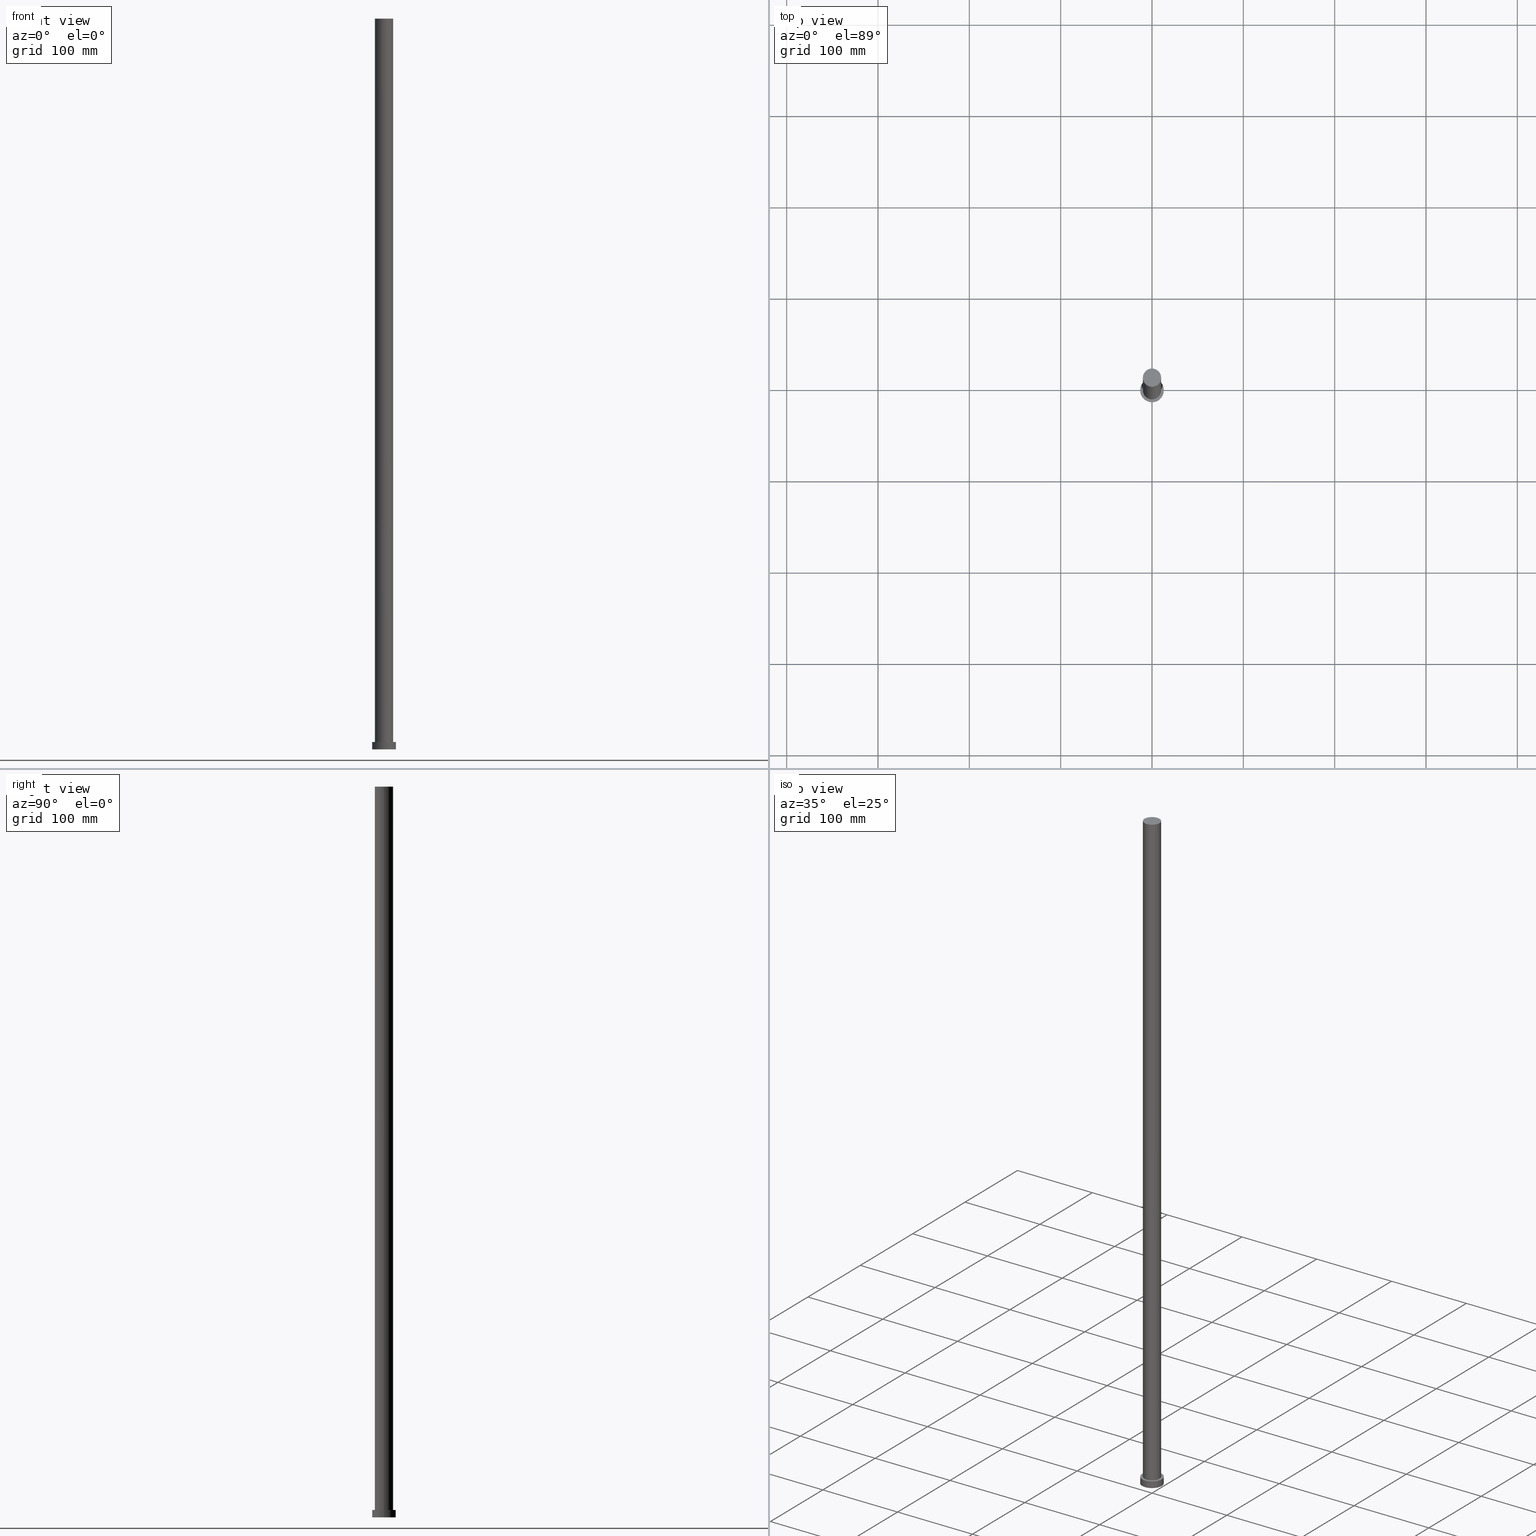
[diagram: canonical four-view strip — front | top / right | iso, engineering-drawing reading convention]
A machine part, canonical four-view strip (front | top / right | iso — engineering-drawing reading convention). The complete STEP part file that produces these views, byte-faithful:
ISO-10303-21;
HEADER;
FILE_DESCRIPTION (( 'STEP AP203' ),
    '1' );
FILE_NAME ('0bb4.STEP',
    '2023-02-12T10:31:36',
    ( '' ),
    ( '' ),
    'SwSTEP 2.0',
    'SolidWorks 2019',
    '' );
FILE_SCHEMA (( 'CONFIG_CONTROL_DESIGN' ));
ENDSEC;

DATA;
#1 = CARTESIAN_POINT ( 'NONE',  ( 10.00000000000000000, 1.224646799147353256E-15, 800.0000000000000000 ) ) ;
#2 = CARTESIAN_POINT ( 'NONE',  ( 0.000000000000000000, 0.000000000000000000, 800.0000000000000000 ) ) ;
#3 = LOCAL_TIME ( 11, 31, 36.00000000000000000, #138 ) ;
#4 = DIRECTION ( 'NONE',  ( 0.000000000000000000, 0.000000000000000000, 1.000000000000000000 ) ) ;
#5 = CYLINDRICAL_SURFACE ( 'NONE', #59, 10.00000000000000000 ) ;
#6 = AXIS2_PLACEMENT_3D ( 'NONE', #102, #88, #244 ) ;
#7 = CARTESIAN_POINT ( 'NONE',  ( 0.000000000000000000, 0.000000000000000000, 800.0000000000000000 ) ) ;
#8 = DIRECTION ( 'NONE',  ( 1.000000000000000000, 0.000000000000000000, 0.000000000000000000 ) ) ;
#9 = CARTESIAN_POINT ( 'NONE',  ( -10.00000000000000000, 0.000000000000000000, 800.0000000000000000 ) ) ;
#10 = EDGE_LOOP ( 'NONE', ( #224, #127, #52, #16 ) ) ;
#11 = ADVANCED_FACE ( 'NONE', ( #36 ), #179, .T. ) ;
#12 = ORIENTED_EDGE ( 'NONE', *, *, #171, .F. ) ;
#13 = CIRCLE ( 'NONE', #126, 13.00000000000000178 ) ;
#14 = DIRECTION ( 'NONE',  ( -0.000000000000000000, -0.000000000000000000, -1.000000000000000000 ) ) ;
#15 = EDGE_LOOP ( 'NONE', ( #12, #201 ) ) ;
#16 = ORIENTED_EDGE ( 'NONE', *, *, #130, .T. ) ;
#17 = APPROVAL_STATUS ( 'not_yet_approved' ) ;
#18 = DATE_TIME_ROLE ( 'classification_date' ) ;
#19 = PERSON_AND_ORGANIZATION_ROLE ( 'creator' ) ;
#20 = AXIS2_PLACEMENT_3D ( 'NONE', #235, #4, #241 ) ;
#21 = APPROVAL_PERSON_ORGANIZATION ( #186, #159, #190 ) ;
#22 = LINE ( 'NONE', #23, #228 ) ;
#23 = CARTESIAN_POINT ( 'NONE',  ( 10.00000000000000000, 1.224646799147353256E-15, 800.0000000000000000 ) ) ;
#24 = DIRECTION ( 'NONE',  ( 1.000000000000000000, 0.000000000000000000, 0.000000000000000000 ) ) ;
#25 = ADVANCED_FACE ( 'NONE', ( #189 ), #139, .T. ) ;
#26 = AXIS2_PLACEMENT_3D ( 'NONE', #225, #233, #94 ) ;
#27 = DIRECTION ( 'NONE',  ( 0.000000000000000000, 0.000000000000000000, 1.000000000000000000 ) ) ;
#28 = FACE_OUTER_BOUND ( 'NONE', #10, .T. ) ;
#29 = ORIENTED_EDGE ( 'NONE', *, *, #47, .T. ) ;
#30 = ADVANCED_BREP_SHAPE_REPRESENTATION ( '0bb4', ( #154, #152 ), #222 ) ;
#31 = DIRECTION ( 'NONE',  ( 0.000000000000000000, 0.000000000000000000, 1.000000000000000000 ) ) ;
#32 = EDGE_CURVE ( 'NONE', #247, #136, #246, .T. ) ;
#33 = ORIENTED_EDGE ( 'NONE', *, *, #130, .F. ) ;
#34 = DATE_TIME_ROLE ( 'creation_date' ) ;
#35 =( LENGTH_UNIT ( ) NAMED_UNIT ( * ) SI_UNIT ( .MILLI., .METRE. ) );
#36 = FACE_OUTER_BOUND ( 'NONE', #229, .T. ) ;
#37 = PERSON_AND_ORGANIZATION_ROLE ( 'design_supplier' ) ;
#38 = CARTESIAN_POINT ( 'NONE',  ( -13.00000000000000178, 0.000000000000000000, 8.000000000000000000 ) ) ;
#39 = CALENDAR_DATE ( 2023, 12, 2 ) ;
#40 = PERSON_AND_ORGANIZATION_ROLE ( 'creator' ) ;
#41 = ADVANCED_FACE ( 'NONE', ( #86, #209 ), #43, .T. ) ;
#42 = CIRCLE ( 'NONE', #237, 10.00000000000000000 ) ;
#43 = PLANE ( 'NONE',  #193 ) ;
#44 = LOCAL_TIME ( 11, 31, 36.00000000000000000, #156 ) ;
#45 = CARTESIAN_POINT ( 'NONE',  ( 13.00000000000000178, 1.592040838891559293E-15, 0.000000000000000000 ) ) ;
#46 = DIRECTION ( 'NONE',  ( -1.000000000000000000, 0.000000000000000000, 0.000000000000000000 ) ) ;
#47 = EDGE_CURVE ( 'NONE', #55, #57, #22, .T. ) ;
#48 = CIRCLE ( 'NONE', #178, 13.00000000000000178 ) ;
#49 = ORIENTED_EDGE ( 'NONE', *, *, #32, .F. ) ;
#50 = APPROVAL_PERSON_ORGANIZATION ( #96, #191, #78 ) ;
#51 = CARTESIAN_POINT ( 'NONE',  ( -10.00000000000000000, 0.000000000000000000, 800.0000000000000000 ) ) ;
#52 = ORIENTED_EDGE ( 'NONE', *, *, #140, .T. ) ;
#53 = ORIENTED_EDGE ( 'NONE', *, *, #239, .F. ) ;
#54 = DATE_AND_TIME ( #39, #160 ) ;
#55 = VERTEX_POINT ( 'NONE', #1 ) ;
#56 = PERSON_AND_ORGANIZATION_ROLE ( 'design_owner' ) ;
#57 = VERTEX_POINT ( 'NONE', #174 ) ;
#58 = PERSON_AND_ORGANIZATION ( #197, #198 ) ;
#59 = AXIS2_PLACEMENT_3D ( 'NONE', #7, #144, #217 ) ;
#60 = PERSON_AND_ORGANIZATION ( #197, #198 ) ;
#61 = AXIS2_PLACEMENT_3D ( 'NONE', #75, #184, #251 ) ;
#62 = APPROVAL_PERSON_ORGANIZATION ( #114, #180, #236 ) ;
#63 = DIRECTION ( 'NONE',  ( -1.000000000000000000, 0.000000000000000000, 0.000000000000000000 ) ) ;
#64 = EDGE_CURVE ( 'NONE', #92, #55, #42, .T. ) ;
#65 = DIRECTION ( 'NONE',  ( 1.000000000000000000, 0.000000000000000000, 0.000000000000000000 ) ) ;
#66 = SECURITY_CLASSIFICATION ( '', '', #100 ) ;
#67 = DIRECTION ( 'NONE',  ( 0.000000000000000000, 0.000000000000000000, 1.000000000000000000 ) ) ;
#68 = VERTEX_POINT ( 'NONE', #45 ) ;
#69 = CLOSED_SHELL ( 'NONE', ( #11, #25, #173, #41, #202, #108, #243 ) ) ;
#70 = CARTESIAN_POINT ( 'NONE',  ( 0.000000000000000000, 0.000000000000000000, 8.000000000000000000 ) ) ;
#71 = PLANE ( 'NONE',  #61 ) ;
#72 = ORIENTED_EDGE ( 'NONE', *, *, #64, .T. ) ;
#73 = CYLINDRICAL_SURFACE ( 'NONE', #89, 13.00000000000000178 ) ;
#74 = ORIENTED_EDGE ( 'NONE', *, *, #87, .F. ) ;
#75 = CARTESIAN_POINT ( 'NONE',  ( 0.000000000000000000, 0.000000000000000000, 800.0000000000000000 ) ) ;
#76 = ORIENTED_EDGE ( 'NONE', *, *, #82, .T. ) ;
#77 = DIRECTION ( 'NONE',  ( -0.000000000000000000, -0.000000000000000000, -1.000000000000000000 ) ) ;
#78 = APPROVAL_ROLE ( '' ) ;
#79 = EDGE_CURVE ( 'NONE', #136, #247, #48, .T. ) ;
#80 = DESIGN_CONTEXT ( 'detailed design', #116, 'design' ) ;
#81 = DATE_AND_TIME ( #211, #3 ) ;
#82 = EDGE_CURVE ( 'NONE', #57, #185, #187, .T. ) ;
#83 = AXIS2_PLACEMENT_3D ( 'NONE', #105, #93, #24 ) ;
#84 = CIRCLE ( 'NONE', #175, 13.00000000000000178 ) ;
#85 = SHAPE_DEFINITION_REPRESENTATION ( #216, #30 ) ;
#86 = FACE_BOUND ( 'NONE', #167, .T. ) ;
#87 = EDGE_CURVE ( 'NONE', #55, #92, #218, .T. ) ;
#88 = DIRECTION ( 'NONE',  ( 0.000000000000000000, 0.000000000000000000, 1.000000000000000000 ) ) ;
#89 = AXIS2_PLACEMENT_3D ( 'NONE', #128, #151, #46 ) ;
#90 = ORIENTED_EDGE ( 'NONE', *, *, #82, .F. ) ;
#91 = DIRECTION ( 'NONE',  ( 0.000000000000000000, 0.000000000000000000, 1.000000000000000000 ) ) ;
#92 = VERTEX_POINT ( 'NONE', #51 ) ;
#93 = DIRECTION ( 'NONE',  ( 0.000000000000000000, 0.000000000000000000, 1.000000000000000000 ) ) ;
#94 = DIRECTION ( 'NONE',  ( 1.000000000000000000, 0.000000000000000000, -0.000000000000000000 ) ) ;
#95 = ORIENTED_EDGE ( 'NONE', *, *, #242, .T. ) ;
#96 = PERSON_AND_ORGANIZATION ( #197, #198 ) ;
#97 = CALENDAR_DATE ( 2023, 12, 2 ) ;
#98 = APPROVAL_STATUS ( 'not_yet_approved' ) ;
#99 = CC_DESIGN_SECURITY_CLASSIFICATION ( #66, ( #122 ) ) ;
#100 = SECURITY_CLASSIFICATION_LEVEL ( 'unclassified' ) ;
#101 = DIRECTION ( 'NONE',  ( -0.000000000000000000, -0.000000000000000000, -1.000000000000000000 ) ) ;
#102 = CARTESIAN_POINT ( 'NONE',  ( 0.000000000000000000, 0.000000000000000000, 8.000000000000000000 ) ) ;
#103 = PRODUCT_RELATED_PRODUCT_CATEGORY ( 'detail', '', ( #213 ) ) ;
#104 = APPLICATION_PROTOCOL_DEFINITION ( 'international standard', 'config_control_design', 1994, #118 ) ;
#105 = CARTESIAN_POINT ( 'NONE',  ( 0.000000000000000000, 0.000000000000000000, 8.000000000000000000 ) ) ;
#106 = MECHANICAL_CONTEXT ( 'NONE', #118, 'mechanical' ) ;
#107 =( NAMED_UNIT ( * ) SI_UNIT ( $, .STERADIAN. ) SOLID_ANGLE_UNIT ( ) );
#108 = ADVANCED_FACE ( 'NONE', ( #28 ), #5, .T. ) ;
#109 = DIRECTION ( 'NONE',  ( 1.000000000000000000, 0.000000000000000000, 0.000000000000000000 ) ) ;
#110 = CARTESIAN_POINT ( 'NONE',  ( 13.00000000000000178, 1.592040838891559293E-15, 8.000000000000000000 ) ) ;
#111 = ORIENTED_EDGE ( 'NONE', *, *, #32, .T. ) ;
#112 = DIRECTION ( 'NONE',  ( 0.000000000000000000, 0.000000000000000000, 1.000000000000000000 ) ) ;
#113 = PERSON_AND_ORGANIZATION_ROLE ( 'classification_officer' ) ;
#114 = PERSON_AND_ORGANIZATION ( #197, #198 ) ;
#115 = LOCAL_TIME ( 11, 31, 36.00000000000000000, #212 ) ;
#116 = APPLICATION_CONTEXT ( 'configuration controlled 3d designs of mechanical parts and assemblies' ) ;
#117 = DATE_AND_TIME ( #134, #115 ) ;
#118 = APPLICATION_CONTEXT ( 'configuration controlled 3d designs of mechanical parts and assemblies' ) ;
#119 = UNCERTAINTY_MEASURE_WITH_UNIT (LENGTH_MEASURE( 1.000000000000000082E-05 ), #35, 'distance_accuracy_value', 'NONE');
#120 = CARTESIAN_POINT ( 'NONE',  ( 0.000000000000000000, 0.000000000000000000, 8.000000000000000000 ) ) ;
#121 = DIRECTION ( 'NONE',  ( -1.000000000000000000, 0.000000000000000000, 0.000000000000000000 ) ) ;
#122 = PRODUCT_DEFINITION_FORMATION_WITH_SPECIFIED_SOURCE ( 'LIBOVOLN�', '', #213, .NOT_KNOWN. ) ;
#123 = FACE_OUTER_BOUND ( 'NONE', #204, .T. ) ;
#124 = DIRECTION ( 'NONE',  ( 1.000000000000000000, 0.000000000000000000, 0.000000000000000000 ) ) ;
#125 = DIRECTION ( 'NONE',  ( -0.000000000000000000, -0.000000000000000000, -1.000000000000000000 ) ) ;
#126 = AXIS2_PLACEMENT_3D ( 'NONE', #203, #31, #109 ) ;
#127 = ORIENTED_EDGE ( 'NONE', *, *, #64, .F. ) ;
#128 = CARTESIAN_POINT ( 'NONE',  ( 0.000000000000000000, 0.000000000000000000, 8.000000000000000000 ) ) ;
#129 = EDGE_LOOP ( 'NONE', ( #72, #249 ) ) ;
#130 = EDGE_CURVE ( 'NONE', #185, #57, #210, .T. ) ;
#131 = VERTEX_POINT ( 'NONE', #182 ) ;
#132 = APPROVAL_DATE_TIME ( #54, #180 ) ;
#133 = AXIS2_PLACEMENT_3D ( 'NONE', #155, #240, #63 ) ;
#134 = CALENDAR_DATE ( 2023, 12, 2 ) ;
#135 = LINE ( 'NONE', #205, #255 ) ;
#136 = VERTEX_POINT ( 'NONE', #181 ) ;
#137 = DATE_AND_TIME ( #97, #188 ) ;
#138 = COORDINATED_UNIVERSAL_TIME_OFFSET ( 1, 0, .AHEAD. ) ;
#139 = CYLINDRICAL_SURFACE ( 'NONE', #133, 13.00000000000000178 ) ;
#140 = EDGE_CURVE ( 'NONE', #92, #185, #143, .T. ) ;
#141 = DIRECTION ( 'NONE',  ( 0.000000000000000000, 0.000000000000000000, 1.000000000000000000 ) ) ;
#142 = CC_DESIGN_PERSON_AND_ORGANIZATION_ASSIGNMENT ( #232, #40, ( #234 ) ) ;
#143 = LINE ( 'NONE', #9, #214 ) ;
#144 = DIRECTION ( 'NONE',  ( -0.000000000000000000, -0.000000000000000000, -1.000000000000000000 ) ) ;
#145 = AXIS2_PLACEMENT_3D ( 'NONE', #147, #67, #65 ) ;
#146 = CARTESIAN_POINT ( 'NONE',  ( 0.000000000000000000, 0.000000000000000000, 800.0000000000000000 ) ) ;
#147 = CARTESIAN_POINT ( 'NONE',  ( 0.000000000000000000, 0.000000000000000000, 800.0000000000000000 ) ) ;
#148 = CC_DESIGN_APPROVAL ( #180, ( #66 ) ) ;
#149 = CC_DESIGN_DATE_AND_TIME_ASSIGNMENT ( #117, #34, ( #234 ) ) ;
#150 = ORIENTED_EDGE ( 'NONE', *, *, #242, .F. ) ;
#151 = DIRECTION ( 'NONE',  ( -0.000000000000000000, -0.000000000000000000, -1.000000000000000000 ) ) ;
#152 = AXIS2_PLACEMENT_3D ( 'NONE', #220, #27, #8 ) ;
#153 = PERSON_AND_ORGANIZATION ( #197, #198 ) ;
#154 = MANIFOLD_SOLID_BREP ( 'P�idat vysunut�m3', #69 ) ;
#155 = CARTESIAN_POINT ( 'NONE',  ( 0.000000000000000000, 0.000000000000000000, 8.000000000000000000 ) ) ;
#156 = COORDINATED_UNIVERSAL_TIME_OFFSET ( 1, 0, .AHEAD. ) ;
#157 = CC_DESIGN_PERSON_AND_ORGANIZATION_ASSIGNMENT ( #153, #19, ( #122 ) ) ;
#158 = AXIS2_PLACEMENT_3D ( 'NONE', #146, #77, #121 ) ;
#159 = APPROVAL ( #17, 'NEUR�EN�' ) ;
#160 = LOCAL_TIME ( 11, 31, 36.00000000000000000, #226 ) ;
#161 = DIRECTION ( 'NONE',  ( 0.000000000000000000, 0.000000000000000000, 1.000000000000000000 ) ) ;
#162 = EDGE_LOOP ( 'NONE', ( #111, #206 ) ) ;
#163 = FACE_OUTER_BOUND ( 'NONE', #129, .T. ) ;
#164 = ORIENTED_EDGE ( 'NONE', *, *, #79, .F. ) ;
#165 = DIRECTION ( 'NONE',  ( 1.000000000000000000, 0.000000000000000000, 0.000000000000000000 ) ) ;
#166 = DIRECTION ( 'NONE',  ( -0.000000000000000000, -0.000000000000000000, -1.000000000000000000 ) ) ;
#167 = EDGE_LOOP ( 'NONE', ( #33, #90 ) ) ;
#168 = APPROVAL_STATUS ( 'not_yet_approved' ) ;
#169 = EDGE_LOOP ( 'NONE', ( #164, #95, #245, #53 ) ) ;
#170 = COORDINATED_UNIVERSAL_TIME_OFFSET ( 1, 0, .AHEAD. ) ;
#171 = EDGE_CURVE ( 'NONE', #131, #68, #84, .T. ) ;
#172 = CC_DESIGN_APPROVAL ( #159, ( #122 ) ) ;
#173 = ADVANCED_FACE ( 'NONE', ( #123 ), #73, .T. ) ;
#174 = CARTESIAN_POINT ( 'NONE',  ( 10.00000000000000000, 1.224646799147353256E-15, 8.000000000000000000 ) ) ;
#175 = AXIS2_PLACEMENT_3D ( 'NONE', #200, #91, #165 ) ;
#176 = CARTESIAN_POINT ( 'NONE',  ( -10.00000000000000000, 0.000000000000000000, 8.000000000000000000 ) ) ;
#177 = CC_DESIGN_PERSON_AND_ORGANIZATION_ASSIGNMENT ( #60, #113, ( #66 ) ) ;
#178 = AXIS2_PLACEMENT_3D ( 'NONE', #70, #161, #124 ) ;
#179 = CYLINDRICAL_SURFACE ( 'NONE', #158, 10.00000000000000000 ) ;
#180 = APPROVAL ( #98, 'NEUR�EN�' ) ;
#181 = CARTESIAN_POINT ( 'NONE',  ( 13.00000000000000178, 1.592040838891559293E-15, 8.000000000000000000 ) ) ;
#182 = CARTESIAN_POINT ( 'NONE',  ( -13.00000000000000178, 0.000000000000000000, 0.000000000000000000 ) ) ;
#183 = ORIENTED_EDGE ( 'NONE', *, *, #171, .T. ) ;
#184 = DIRECTION ( 'NONE',  ( 0.000000000000000000, 0.000000000000000000, 1.000000000000000000 ) ) ;
#185 = VERTEX_POINT ( 'NONE', #176 ) ;
#186 = PERSON_AND_ORGANIZATION ( #197, #198 ) ;
#187 = CIRCLE ( 'NONE', #83, 10.00000000000000000 ) ;
#188 = LOCAL_TIME ( 11, 31, 36.00000000000000000, #170 ) ;
#189 = FACE_OUTER_BOUND ( 'NONE', #169, .T. ) ;
#190 = APPROVAL_ROLE ( '' ) ;
#191 = APPROVAL ( #168, 'NEUR�EN�' ) ;
#192 = APPROVAL_DATE_TIME ( #207, #191 ) ;
#193 = AXIS2_PLACEMENT_3D ( 'NONE', #120, #112, #196 ) ;
#194 = CC_DESIGN_PERSON_AND_ORGANIZATION_ASSIGNMENT ( #58, #37, ( #122 ) ) ;
#195 = CC_DESIGN_APPROVAL ( #191, ( #234 ) ) ;
#196 = DIRECTION ( 'NONE',  ( 1.000000000000000000, 0.000000000000000000, -0.000000000000000000 ) ) ;
#197 = PERSON ( 'NEUR�EN�', 'NEUR�EN�', 'NEUR�EN�', ('NEUR�EN�'), ('NEUR�EN�'), ('NEUR�EN�') ) ;
#198 = ORGANIZATION ( 'NEUR�EN�', 'NEUR�EN�', '' ) ;
#199 = CC_DESIGN_DATE_AND_TIME_ASSIGNMENT ( #81, #18, ( #66 ) ) ;
#200 = CARTESIAN_POINT ( 'NONE',  ( 0.000000000000000000, 0.000000000000000000, 0.000000000000000000 ) ) ;
#201 = ORIENTED_EDGE ( 'NONE', *, *, #227, .F. ) ;
#202 = ADVANCED_FACE ( 'NONE', ( #221 ), #253, .F. ) ;
#203 = CARTESIAN_POINT ( 'NONE',  ( 0.000000000000000000, 0.000000000000000000, 0.000000000000000000 ) ) ;
#204 = EDGE_LOOP ( 'NONE', ( #150, #49, #231, #183 ) ) ;
#205 = CARTESIAN_POINT ( 'NONE',  ( -13.00000000000000178, 0.000000000000000000, 8.000000000000000000 ) ) ;
#206 = ORIENTED_EDGE ( 'NONE', *, *, #79, .T. ) ;
#207 = DATE_AND_TIME ( #238, #44 ) ;
#208 = LINE ( 'NONE', #110, #230 ) ;
#209 = FACE_OUTER_BOUND ( 'NONE', #162, .T. ) ;
#210 = CIRCLE ( 'NONE', #6, 10.00000000000000000 ) ;
#211 = CALENDAR_DATE ( 2023, 12, 2 ) ;
#212 = COORDINATED_UNIVERSAL_TIME_OFFSET ( 1, 0, .AHEAD. ) ;
#213 = PRODUCT ( '0bb4', '0bb4', '', ( #106 ) ) ;
#214 = VECTOR ( 'NONE', #125, 1000.000000000000000 ) ;
#215 = DIRECTION ( 'NONE',  ( 1.000000000000000000, 0.000000000000000000, 0.000000000000000000 ) ) ;
#216 = PRODUCT_DEFINITION_SHAPE ( 'NONE', 'NONE',  #234 ) ;
#217 = DIRECTION ( 'NONE',  ( -1.000000000000000000, 0.000000000000000000, 0.000000000000000000 ) ) ;
#218 = CIRCLE ( 'NONE', #145, 10.00000000000000000 ) ;
#219 = ORIENTED_EDGE ( 'NONE', *, *, #140, .F. ) ;
#220 = CARTESIAN_POINT ( 'NONE',  ( 0.000000000000000000, 0.000000000000000000, 0.000000000000000000 ) ) ;
#221 = FACE_OUTER_BOUND ( 'NONE', #15, .T. ) ;
#222 =( GEOMETRIC_REPRESENTATION_CONTEXT ( 3 ) GLOBAL_UNCERTAINTY_ASSIGNED_CONTEXT ( ( #119 ) ) GLOBAL_UNIT_ASSIGNED_CONTEXT ( ( #35, #223, #107 ) ) REPRESENTATION_CONTEXT ( 'NONE', 'WORKASPACE' ) );
#223 =( NAMED_UNIT ( * ) PLANE_ANGLE_UNIT ( ) SI_UNIT ( $, .RADIAN. ) );
#224 = ORIENTED_EDGE ( 'NONE', *, *, #47, .F. ) ;
#225 = CARTESIAN_POINT ( 'NONE',  ( 0.000000000000000000, 0.000000000000000000, 0.000000000000000000 ) ) ;
#226 = COORDINATED_UNIVERSAL_TIME_OFFSET ( 1, 0, .AHEAD. ) ;
#227 = EDGE_CURVE ( 'NONE', #68, #131, #13, .T. ) ;
#228 = VECTOR ( 'NONE', #101, 1000.000000000000000 ) ;
#229 = EDGE_LOOP ( 'NONE', ( #74, #29, #76, #219 ) ) ;
#230 = VECTOR ( 'NONE', #166, 1000.000000000000000 ) ;
#231 = ORIENTED_EDGE ( 'NONE', *, *, #239, .T. ) ;
#232 = PERSON_AND_ORGANIZATION ( #197, #198 ) ;
#233 = DIRECTION ( 'NONE',  ( 0.000000000000000000, 0.000000000000000000, 1.000000000000000000 ) ) ;
#234 = PRODUCT_DEFINITION ( 'NEZN�M�', '', #122, #80 ) ;
#235 = CARTESIAN_POINT ( 'NONE',  ( 0.000000000000000000, 0.000000000000000000, 8.000000000000000000 ) ) ;
#236 = APPROVAL_ROLE ( '' ) ;
#237 = AXIS2_PLACEMENT_3D ( 'NONE', #2, #141, #215 ) ;
#238 = CALENDAR_DATE ( 2023, 12, 2 ) ;
#239 = EDGE_CURVE ( 'NONE', #247, #131, #135, .T. ) ;
#240 = DIRECTION ( 'NONE',  ( -0.000000000000000000, -0.000000000000000000, -1.000000000000000000 ) ) ;
#241 = DIRECTION ( 'NONE',  ( 1.000000000000000000, 0.000000000000000000, 0.000000000000000000 ) ) ;
#242 = EDGE_CURVE ( 'NONE', #136, #68, #208, .T. ) ;
#243 = ADVANCED_FACE ( 'NONE', ( #163 ), #71, .T. ) ;
#244 = DIRECTION ( 'NONE',  ( 1.000000000000000000, 0.000000000000000000, 0.000000000000000000 ) ) ;
#245 = ORIENTED_EDGE ( 'NONE', *, *, #227, .T. ) ;
#246 = CIRCLE ( 'NONE', #20, 13.00000000000000178 ) ;
#247 = VERTEX_POINT ( 'NONE', #38 ) ;
#248 = CC_DESIGN_PERSON_AND_ORGANIZATION_ASSIGNMENT ( #250, #56, ( #213 ) ) ;
#249 = ORIENTED_EDGE ( 'NONE', *, *, #87, .T. ) ;
#250 = PERSON_AND_ORGANIZATION ( #197, #198 ) ;
#251 = DIRECTION ( 'NONE',  ( 1.000000000000000000, 0.000000000000000000, -0.000000000000000000 ) ) ;
#252 = APPROVAL_DATE_TIME ( #137, #159 ) ;
#253 = PLANE ( 'NONE',  #26 ) ;
#254 = APPLICATION_PROTOCOL_DEFINITION ( 'international standard', 'config_control_design', 1994, #116 ) ;
#255 = VECTOR ( 'NONE', #14, 1000.000000000000000 ) ;
ENDSEC;
END-ISO-10303-21;
